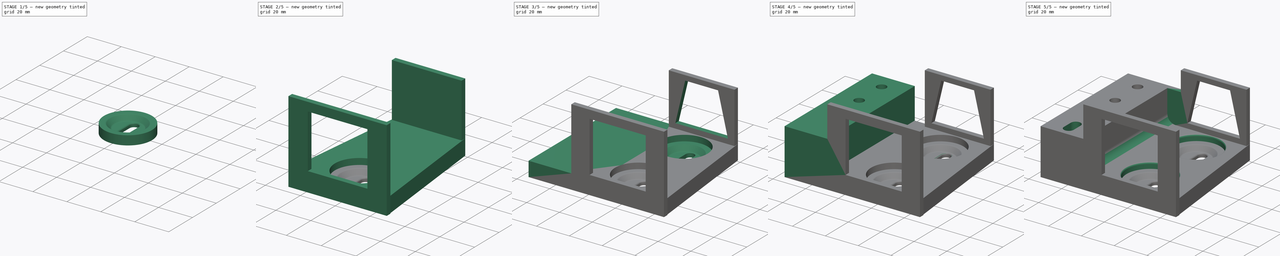
[diagram: build sequence overview — one tinted view per stage of 5, left to right]
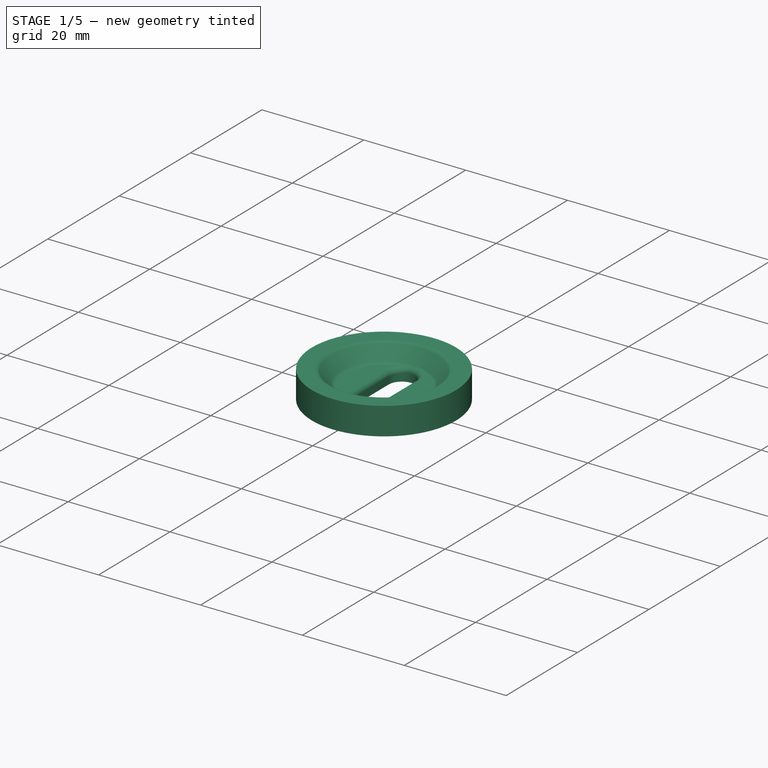
[diagram: stage 1 of 5 — iso view after this stage's code; geometry added in this stage tinted green]
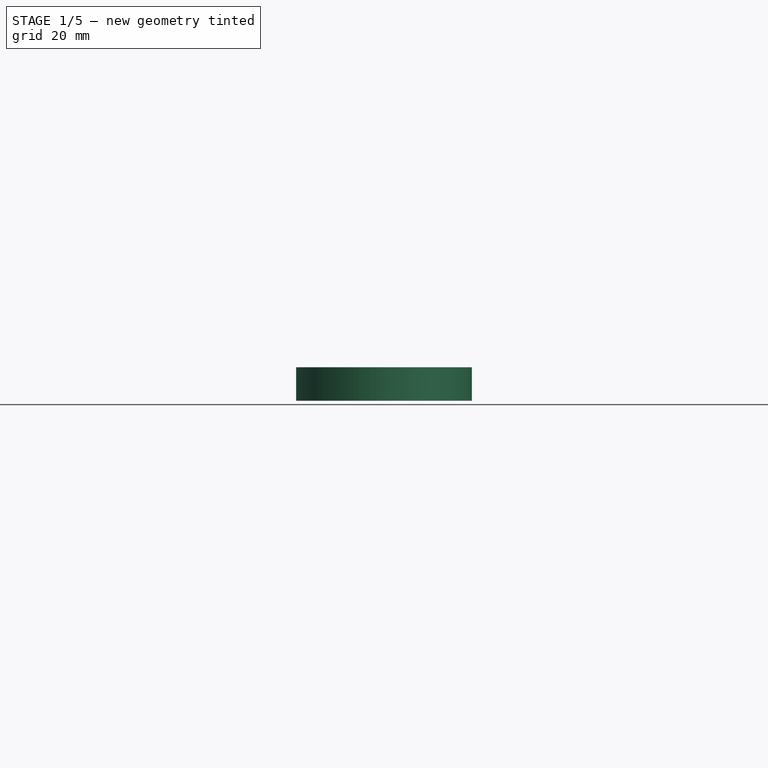
[diagram: stage 1 of 5 — front view after this stage's code; geometry added in this stage tinted green]
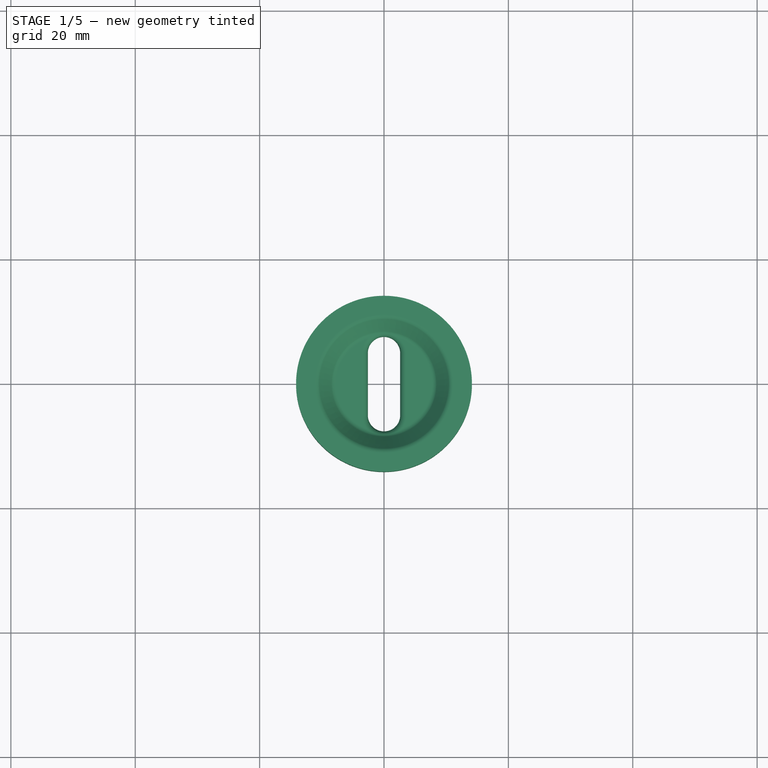
[diagram: stage 1 of 5 — top view after this stage's code; geometry added in this stage tinted green]
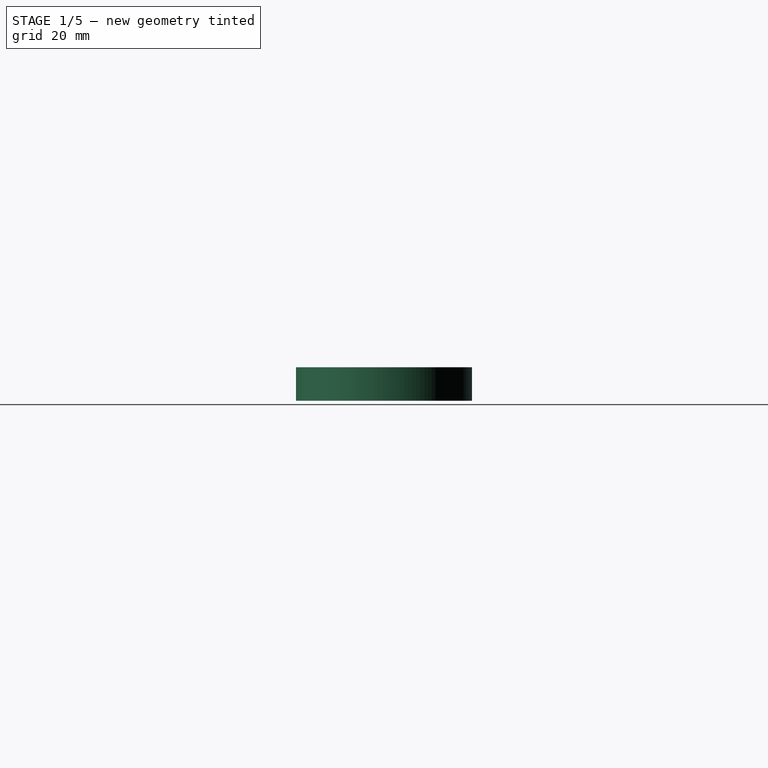
[diagram: stage 1 of 5 — right view after this stage's code; geometry added in this stage tinted green]
FCSTD DOCUMENT  (FreeCAD 1.0R39285 (Git))
Label: 01_Phillips_Mount_v2
License: All rights reserved
LicenseURL: https://en.wikipedia.org/wiki/All_rights_reserved
objects: Sketcher::SketchObject×15, PartDesign::Fillet×8, PartDesign::Pocket×7, PartDesign::Pad×6, PartDesign::Revolution×1, PartDesign::Plane×1, PartDesign::Groove×1, PartDesign::Body×1
note: 101 computed .brp shape members not serialized (recipe doc carries the construction recipe); baked Part::Feature solids carry a one-line shape summary decoded from their .brp

FEATURE [Sketcher::SketchObject] Sketch
  ArcFitTolerance = 1e-06
  AttachmentSupport = -> [YZ_Plane]
  FullyConstrained = true
  MakeInternals = false
  MapMode = 5
  Placement = pos=(0,0,0) rot=(0.57735,0.57735,0.57735;2.0944rad)
  sketch-geometry (6):
    g0: LineSegment StartX=1.2429e-11 StartY=0 StartZ=0 EndX=14.142 EndY=0 EndZ=0
    g1: LineSegment StartX=14.142 StartY=0 StartZ=0 EndX=14.142 EndY=5.4 EndZ=0
    g2: LineSegment StartX=14.142 StartY=5.4 StartZ=0 EndX=10.683 EndY=5.4 EndZ=0
    g3: LineSegment StartX=1.2429e-11 StartY=0 StartZ=0 EndX=1.2429e-11 EndY=2.4 EndZ=0
    g4: LineSegment StartX=1.2429e-11 StartY=2.4 StartZ=0 EndX=8.1657 EndY=2.4 EndZ=0
    g5: LineSegment StartX=10.683 StartY=5.4 StartZ=0 EndX=8.1657 EndY=2.4 EndZ=0
  constraints (17):
    c: Distance(g0) = 14.142
    c: Horizontal(g0)
    c: Distance(g1) = 5.4
    c: Vertical(g1)
    c: Coincident(g1,g0)
    c: Distance(g2) = 3.459
    c: Horizontal(g2)
    c: Coincident(g2,g1)
    c: Distance(g3) = 2.4
    c: Vertical(g3)
    c: Coincident(g3,g0)
    c: Coincident(g4,g3)
    c: Horizontal(g4)
    c: Coincident(g5,g2)
    c: Angle(g5,g4) = 2.26893
    c: Coincident(g5,g4)
    c: Coincident(g0,g-1)
FEATURE [PartDesign::Revolution] Revolution
  Angle = 360
  Angle2 = 60
  Axis = (0,0,1)
  Base = (0,0,0)
  Placement = pos=(0,0,0) rot=(1,1,1;2.0944rad)
  Profile = -> Sketch
  ReferenceAxis = -> Sketch [V_Axis]
  Refine = true
  Reversed = true
  Suppressed = false
  Type = 0
FEATURE [Sketcher::SketchObject] Sketch001
  ArcFitTolerance = 1e-06
  AttachmentSupport = -> [Revolution]
  ExternalGeometry = -> [Revolution]
  FullyConstrained = true
  MakeInternals = false
  MapMode = 5
  Placement = pos=(-5e-16,0,2.4) rot=(0,0,-1;1.5708rad)
  sketch-geometry (6):
    g0: LineSegment StartX=-5 StartY=2.6 StartZ=0 EndX=5 EndY=2.6 EndZ=0
    g1: LineSegment StartX=-5 StartY=-2.6 StartZ=0 EndX=5 EndY=-2.6 EndZ=0
    g2: GeomPoint [constr] X=-5 Y=-1e-16 Z=0
    g3: GeomPoint [constr] X=5 Y=2e-16 Z=0
    g4: ArcOfCircle CenterX=-5 CenterY=-1e-16 CenterZ=0 NormalX=0 NormalY=0 NormalZ=1 AngleXU=0 Radius=2.6 StartAngle=1.5708 EndAngle=4.71239
    g5: ArcOfCircle CenterX=5 CenterY=2e-16 CenterZ=0 NormalX=0 NormalY=0 NormalZ=1 AngleXU=0 Radius=2.6 StartAngle=4.71239 EndAngle=7.85398
  constraints (16):
    c: Distance(g0) = 10
    c: Horizontal(g0)
    c: Distance(g1) = 10
    c: Horizontal(g1)
    c: Vertical(g1,g0)
    c: DistanceY(g1,g0) = 5.2
    c: DistanceY(g-1,g0) = 2.6
    c: Vertical(g2,g0)
    c: Vertical(g3,g0)
    c: DistanceX(g2,g-1) = 5
    c: Coincident(g4,g1)
    c: Coincident(g4,g0)
    c: Coincident(g4,g2)
    c: Coincident(g5,g1)
    c: Coincident(g5,g0)
    c: Coincident(g5,g3)
FEATURE [PartDesign::Pocket] Pocket
  BaseFeature = -> Revolution
  Direction = (0,0,-1)
  Length = 5
  Length2 = 5
  Placement = pos=(0,0,0) rot=(1,1,1;2.0944rad)
  Profile = -> Sketch001
  ReferenceAxis = -> Sketch001 [N_Axis]
  Refine = true
  Suppressed = false
  Type = 0
FEATURE [PartDesign::Fillet] Fillet
  Base = -> Pocket [Edge17]
  BaseFeature = -> Pocket
  Placement = pos=(0,0,0) rot=(1,1,1;2.0944rad)
  Radius = 1
  Refine = true
  SupportTransform = false
  Suppressed = false
  UseAllEdges = false
FEATURE [PartDesign::Fillet] Fillet001
  Base = -> Fillet [Edge2]
  BaseFeature = -> Fillet
  Placement = pos=(0,0,0) rot=(1,1,1;2.0944rad)
  Radius = 1
  Refine = true
  SupportTransform = false
  Suppressed = false
  UseAllEdges = false
FEATURE [PartDesign::Fillet] Fillet002
  Base = -> Fillet001 [Edge21]
  BaseFeature = -> Fillet001
  Placement = pos=(0,0,0) rot=(1,1,1;2.0944rad)
  Radius = 1
  Refine = true
  SupportTransform = false
  Suppressed = false
  UseAllEdges = false
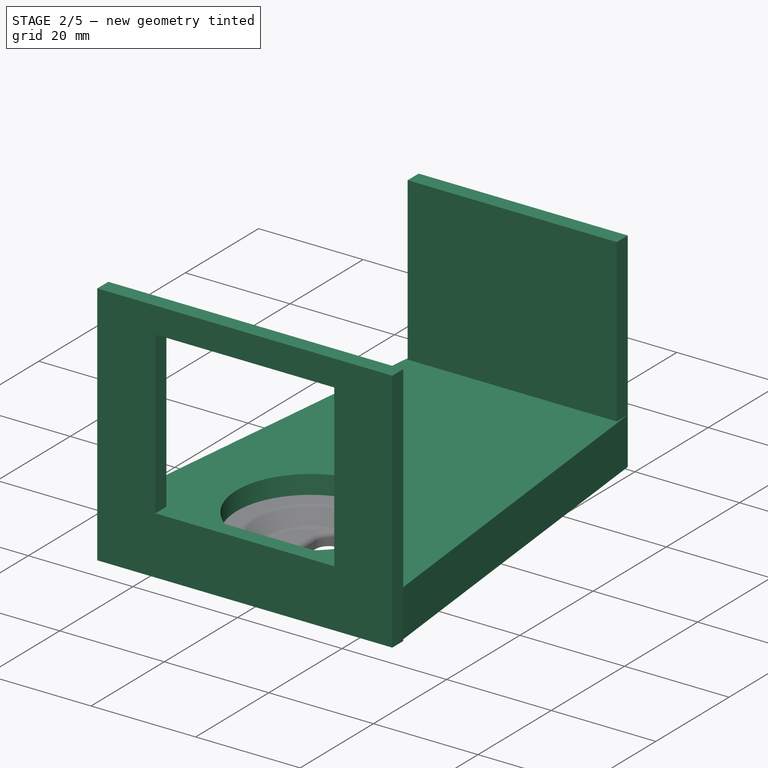
[diagram: stage 2 of 5 — iso view after this stage's code; geometry added in this stage tinted green]
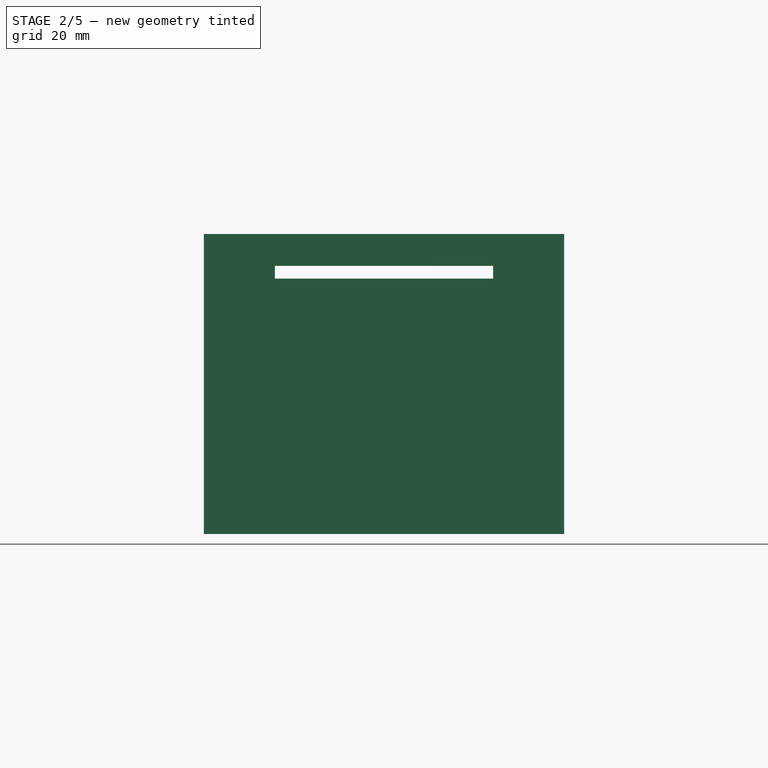
[diagram: stage 2 of 5 — front view after this stage's code; geometry added in this stage tinted green]
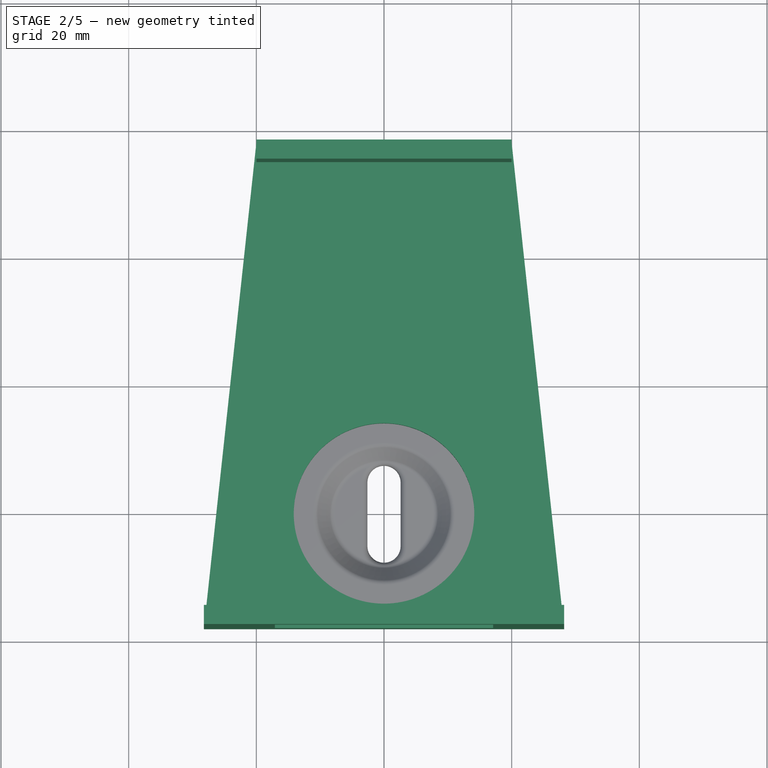
[diagram: stage 2 of 5 — top view after this stage's code; geometry added in this stage tinted green]
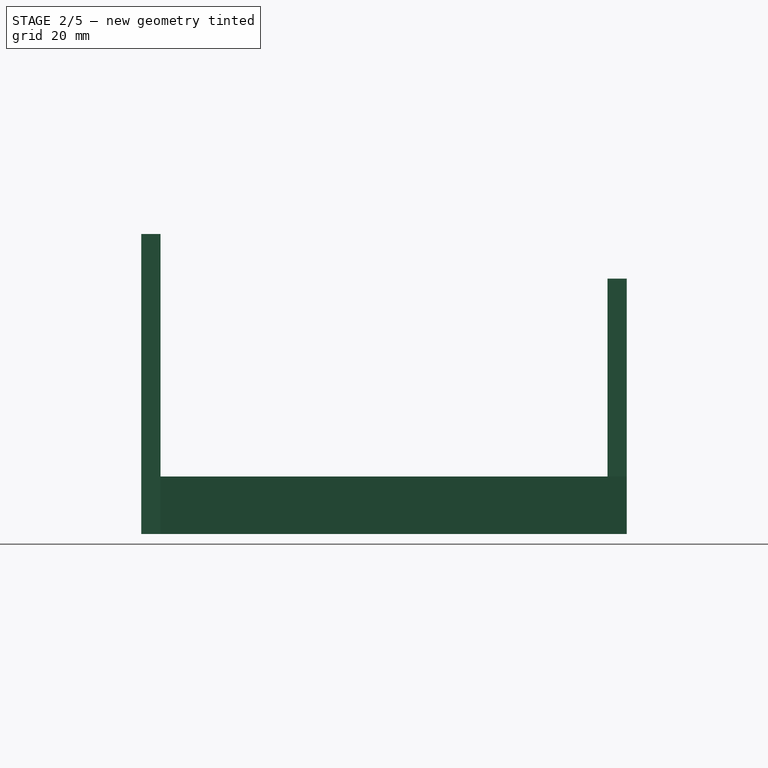
[diagram: stage 2 of 5 — right view after this stage's code; geometry added in this stage tinted green]
FEATURE [Sketcher::SketchObject] Sketch002
  ArcFitTolerance = 1e-06
  AttachmentSupport = -> [Fillet002]
  ExternalGeometry = -> [Fillet002]
  FullyConstrained = true
  MakeInternals = false
  MapMode = 5
  Placement = pos=(0,0,0) rot=(0.707107,0.707107,0;3.14159rad)
  sketch-geometry (5):
    g0: LineSegment StartX=58.0423 StartY=20 StartZ=0 EndX=58.0423 EndY=-20 EndZ=0
    g1: LineSegment StartX=-18 StartY=28.2125 StartZ=0 EndX=-18 EndY=-28.2125 EndZ=0
    g2: LineSegment StartX=58.0423 StartY=20 StartZ=0 EndX=-18 EndY=28.2125 EndZ=0
    g3: LineSegment StartX=58.0423 StartY=-20 StartZ=0 EndX=-18 EndY=-28.2125 EndZ=0
    g4: Circle CenterX=0 CenterY=0 CenterZ=0 NormalX=0 NormalY=0 NormalZ=1 AngleXU=0 Radius=14.142
  constraints (14):
    c: Distance(g0) = 40
    c: Vertical(g0)
    c: Distance(g1) = 56.425
    c: Vertical(g1)
    c: Coincident(g2,g0)
    c: Coincident(g2,g1)
    c: Coincident(g3,g0)
    c: Coincident(g3,g1)
    c: Angle(g2,g0) = 1.67838
    c: Angle(g0,g3) = 1.67838
    c: DistanceX(g1,g-1) = 18
    c: DistanceY(g-1,g0) = 20
    c: Coincident(g4,g-1)
    c: Equal(g4,g-3)
FEATURE [PartDesign::Pad] Pad
  BaseFeature = -> Fillet002
  Direction = (0,0,-1)
  Length = 9
  Length2 = 10
  Placement = pos=(0,0,0) rot=(1,1,1;2.0944rad)
  Profile = -> Sketch002
  ReferenceAxis = -> Sketch002 [N_Axis]
  Refine = true
  Reversed = true
  Suppressed = false
  Type = 0
FEATURE [Sketcher::SketchObject] Sketch003
  ArcFitTolerance = 1e-06
  AttachmentSupport = -> [Pad]
  FullyConstrained = true
  MakeInternals = false
  MapMode = 5
  Placement = pos=(2.58e-14,58.0423,-6.4e-15) rot=(0.57735,0.57735,0.57735;4.18879rad)
  sketch-geometry (4):
    g0: LineSegment StartX=0 StartY=20 StartZ=0 EndX=0 EndY=-20 EndZ=0
    g1: LineSegment StartX=0 StartY=-20 StartZ=0 EndX=40 EndY=-20 EndZ=0
    g2: LineSegment StartX=40 StartY=-20 StartZ=0 EndX=40 EndY=20 EndZ=0
    g3: LineSegment StartX=40 StartY=20 StartZ=0 EndX=0 EndY=20 EndZ=0
  constraints (12):
    c: Coincident(g0,g1)
    c: Coincident(g1,g2)
    c: Coincident(g2,g3)
    c: Coincident(g3,g0)
    c: Vertical(g0)
    c: Vertical(g2)
    c: Horizontal(g1)
    c: Horizontal(g3)
    c: Distance(g0,g2) = 40
    c: Distance(g1,g3) = 40
    c: DistanceY(g-1,g0) = 20
    c: DistanceX(g0,g-1) = 0
FEATURE [PartDesign::Pad] Pad001
  BaseFeature = -> Pad
  Direction = (0,1,0)
  Length = 3
  Length2 = 10
  Placement = pos=(0,0,0) rot=(1,1,1;2.0944rad)
  Profile = -> Sketch003
  ReferenceAxis = -> Sketch003 [N_Axis]
  Refine = true
  Reversed = true
  Suppressed = false
  Type = 0
FEATURE [Sketcher::SketchObject] Sketch004
  ArcFitTolerance = 1e-06
  AttachmentSupport = -> [Pad001]
  ExternalGeometry = -> [Pad001]
  FullyConstrained = true
  MakeInternals = false
  MapMode = 5
  Placement = pos=(-8e-15,-18,8e-15) rot=(0.57735,0.57735,-0.57735;2.0944rad)
  sketch-geometry (4):
    g0: LineSegment StartX=-47 StartY=28.2125 StartZ=0 EndX=-47 EndY=-28.2125 EndZ=0
    g1: LineSegment StartX=0 StartY=28.2125 StartZ=0 EndX=0 EndY=-28.2125 EndZ=0
    g2: LineSegment StartX=-47 StartY=28.2125 StartZ=0 EndX=0 EndY=28.2125 EndZ=0
    g3: LineSegment StartX=-47 StartY=-28.2125 StartZ=0 EndX=0 EndY=-28.2125 EndZ=0
  constraints (12):
    c: Vertical(g0)
    c: Vertical(g1)
    c: Equal(g-3,g1)
    c: Equal(g1,g0)
    c: Distance(g2) = 47
    c: Horizontal(g2)
    c: Distance(g3) = 47
    c: Horizontal(g3)
    c: Coincident(g0,g3)
    c: Coincident(g3,g1)
    c: Coincident(g2,g0)
    c: Symmetric(g1,g1,g-1)
FEATURE [PartDesign::Pad] Pad002
  BaseFeature = -> Pad001
  Direction = (0,-1,0)
  Length = 3
  Length2 = 10
  Placement = pos=(0,0,0) rot=(1,1,1;2.0944rad)
  Profile = -> Sketch004
  ReferenceAxis = -> Sketch004 [N_Axis]
  Refine = true
  Reversed = true
  Suppressed = false
  Type = 0
FEATURE [Sketcher::SketchObject] Sketch005
  ArcFitTolerance = 1e-06
  AttachmentSupport = -> [Pad002]
  ExternalGeometry = -> [Pad002]
  FullyConstrained = true
  MakeInternals = false
  MapMode = 5
  Placement = pos=(-8.8e-15,-18,2e-15) rot=(0.57735,0.57735,-0.57735;2.0944rad)
  sketch-geometry (6):
    g0: LineSegment StartX=-42 StartY=17.1 StartZ=0 EndX=-42 EndY=-17.1 EndZ=0
    g1: LineSegment StartX=-42 StartY=-17.1 StartZ=0 EndX=-11.1 EndY=-17.1 EndZ=0
    g2: LineSegment StartX=-11.1 StartY=-17.1 StartZ=0 EndX=-11.1 EndY=17.1 EndZ=0
    g3: LineSegment StartX=-11.1 StartY=17.1 StartZ=0 EndX=-42 EndY=17.1 EndZ=0
    g4: LineSegment [constr] StartX=-47 StartY=28.2125 StartZ=0 EndX=-42 EndY=17.1 EndZ=0
    g5: LineSegment [constr] StartX=-42 StartY=-17.1 StartZ=0 EndX=-47 EndY=-28.2125 EndZ=0
  constraints (16):
    c: Coincident(g0,g1)
    c: Coincident(g1,g2)
    c: Coincident(g2,g3)
    c: Coincident(g3,g0)
    c: Vertical(g0)
    c: Vertical(g2)
    c: Horizontal(g1)
    c: Horizontal(g3)
    c: Distance(g0,g2) = 30.9
    c: Distance(g1,g3) = 34.2
    c: DistanceX(g-3,g0) = 5
    c: Coincident(g4,g-3)
    c: Coincident(g4,g0)
    c: Coincident(g5,g0)
    c: Coincident(g5,g-3)
    c: Equal(g4,g5)
FEATURE [PartDesign::Pocket] Pocket001
  BaseFeature = -> Pad002
  Direction = (0,1,0)
  Length = 5
  Length2 = 5
  Placement = pos=(0,0,0) rot=(1,1,1;2.0944rad)
  Profile = -> Sketch005
  ReferenceAxis = -> Sketch005 [N_Axis]
  Refine = true
  Suppressed = false
  Type = 2
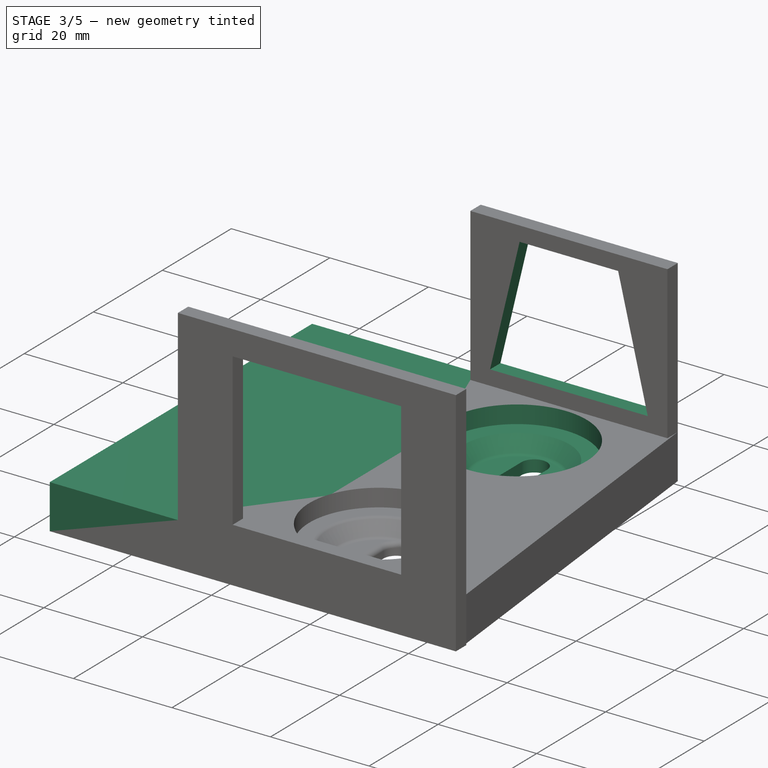
[diagram: stage 3 of 5 — iso view after this stage's code; geometry added in this stage tinted green]
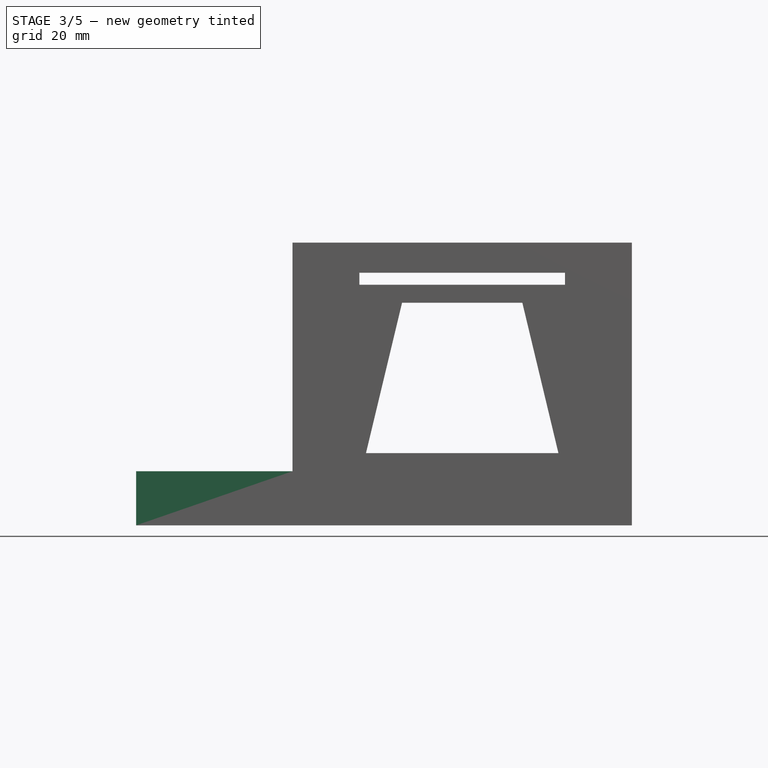
[diagram: stage 3 of 5 — front view after this stage's code; geometry added in this stage tinted green]
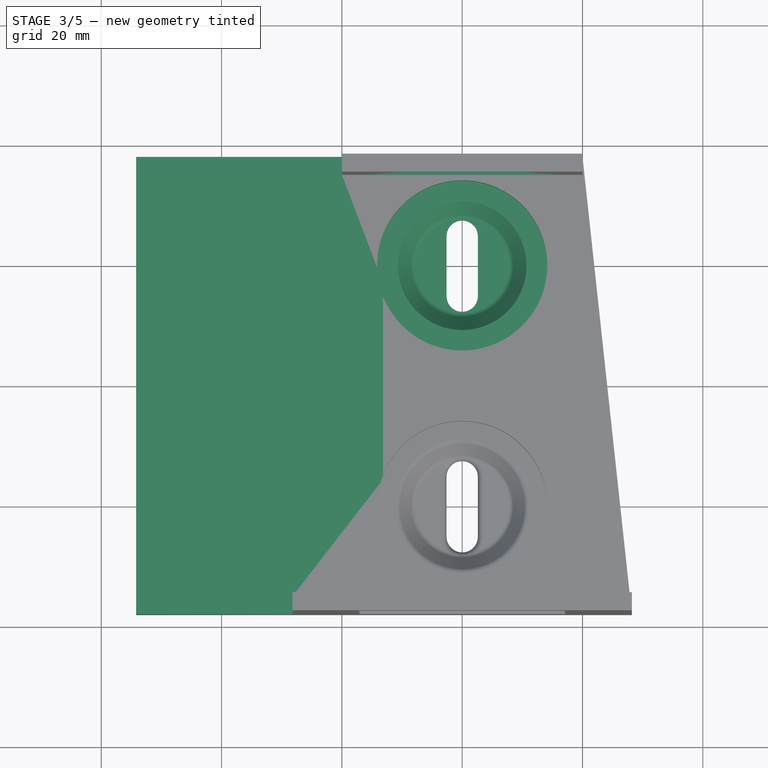
[diagram: stage 3 of 5 — top view after this stage's code; geometry added in this stage tinted green]
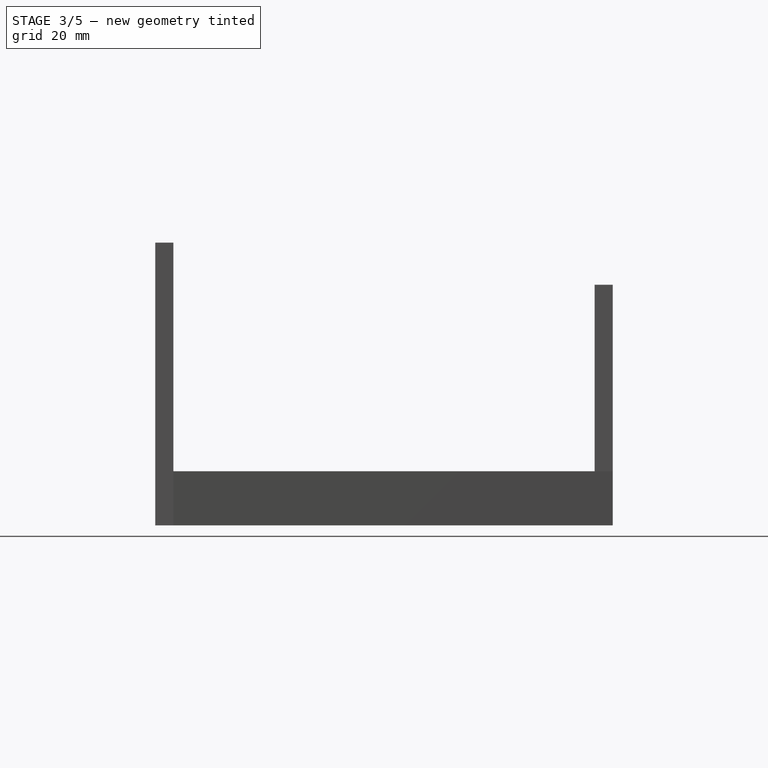
[diagram: stage 3 of 5 — right view after this stage's code; geometry added in this stage tinted green]
FEATURE [Sketcher::SketchObject] Sketch006
  ArcFitTolerance = 1e-06
  AttachmentSupport = -> [Pocket001]
  ExternalGeometry = -> [Pocket001]
  FullyConstrained = true
  MakeInternals = false
  MapMode = 5
  Placement = pos=(2.81e-14,58.0423,-4.51e-14) rot=(0.57735,0.57735,0.57735;4.18879rad)
  sketch-geometry (4):
    g0: LineSegment StartX=12 StartY=16 StartZ=0 EndX=12 EndY=-16 EndZ=0
    g1: LineSegment StartX=37 StartY=10 StartZ=0 EndX=37 EndY=-10 EndZ=0
    g2: LineSegment StartX=12 StartY=16 StartZ=0 EndX=37 EndY=10 EndZ=0
    g3: LineSegment StartX=12 StartY=-16 StartZ=0 EndX=37 EndY=-10 EndZ=0
  constraints (12):
    c: Distance(g0) = 32
    c: Vertical(g0)
    c: Distance(g1) = 20
    c: Vertical(g1)
    c: DistanceY(g-1,g0) = 16
    c: DistanceY(g-1,g1) = 10
    c: DistanceX(g-4,g0) = 12
    c: DistanceX(g1,g-3) = 3
    c: Coincident(g2,g0)
    c: Coincident(g2,g1)
    c: Coincident(g3,g0)
    c: Coincident(g3,g1)
FEATURE [PartDesign::Pocket] Pocket002
  BaseFeature = -> Pocket001
  Direction = (0,-1,0)
  Length = 5
  Length2 = 5
  Placement = pos=(0,0,0) rot=(1,1,1;2.0944rad)
  Profile = -> Sketch006
  ReferenceAxis = -> Sketch006 [N_Axis]
  Refine = true
  Suppressed = false
  Type = 2
FEATURE [Sketcher::SketchObject] Sketch007
  ArcFitTolerance = 1e-06
  AttachmentSupport = -> [Pocket002]
  ExternalGeometry = -> [Pocket002]
  FullyConstrained = true
  MakeInternals = false
  MapMode = 5
  Placement = pos=(-1.5e-14,5e-15,9) rot=(0,0,-1;1.5708rad)
  sketch-geometry (4):
    g0: LineSegment StartX=18 StartY=-28.2125 StartZ=0 EndX=-58.0423 EndY=-20 EndZ=0
    g1: LineSegment StartX=18 StartY=-28.2125 StartZ=0 EndX=18 EndY=-54.2125 EndZ=0
    g2: LineSegment StartX=-58.0423 StartY=-20 StartZ=0 EndX=-58.0423 EndY=-54.2125 EndZ=0
    g3: LineSegment StartX=-58.0423 StartY=-54.2125 StartZ=0 EndX=18 EndY=-54.2125 EndZ=0
  constraints (10):
    c: Coincident(g0,g-3)
    c: Coincident(g0,g-4)
    c: Distance(g1) = 26
    c: Coincident(g1,g0)
    c: Vertical(g1)
    c: Coincident(g2,g0)
    c: Vertical(g2)
    c: Coincident(g3,g2)
    c: Coincident(g3,g1)
    c: Horizontal(g3)
FEATURE [PartDesign::Pad] Pad003
  BaseFeature = -> Pocket002
  Direction = (-1.7e-15,0,1)
  Length = 9
  Length2 = 10
  Placement = pos=(0,0,0) rot=(1,1,1;2.0944rad)
  Profile = -> Sketch007
  ReferenceAxis = -> Sketch007 [N_Axis]
  Refine = true
  Reversed = true
  Suppressed = false
  Type = 0
FEATURE [PartDesign::Plane] DatumPlane
  AttachmentSupport = -> [Pad003]
  Length = 98.5072
  MapMode = 2
  Placement = pos=(0,0,0) rot=(0.57735,0.57735,0.57735;2.0944rad)
  ResizeMode = 0
  Width = 87.4649
FEATURE [Sketcher::SketchObject] Sketch008
  ArcFitTolerance = 1e-06
  AttachmentSupport = -> [DatumPlane]
  FullyConstrained = true
  MakeInternals = false
  MapMode = 5
  Placement = pos=(0,0,0) rot=(0.57735,0.57735,0.57735;2.0944rad)
  sketch-geometry (7):
    g0: GeomPoint [constr] X=40 Y=0 Z=0
    g1: LineSegment StartX=25.858 StartY=9 StartZ=0 EndX=40 EndY=9 EndZ=0
    g2: LineSegment StartX=40 StartY=9 StartZ=0 EndX=40 EndY=2.4 EndZ=0
    g3: LineSegment StartX=25.858 StartY=9 StartZ=0 EndX=25.858 EndY=5.4 EndZ=0
    g4: LineSegment StartX=25.858 StartY=5.4 StartZ=0 EndX=29.317 EndY=5.4 EndZ=0
    g5: LineSegment StartX=40 StartY=2.4 StartZ=0 EndX=31.8343 EndY=2.4 EndZ=0
    g6: LineSegment StartX=29.317 StartY=5.4 StartZ=0 EndX=31.8343 EndY=2.4 EndZ=0
  constraints (20):
    c: DistanceX(g-1,g0) = 40
    c: DistanceY(g-1,g0) = 0
    c: Distance(g1) = 14.142
    c: Horizontal(g1)
    c: Distance(g2) = 6.6
    c: Vertical(g2)
    c: Coincident(g2,g1)
    c: Distance(g3) = 3.6
    c: Vertical(g3)
    c: Coincident(g3,g1)
    c: Distance(g4) = 3.459
    c: Horizontal(g4)
    c: Coincident(g4,g3)
    c: Coincident(g5,g2)
    c: Horizontal(g5)
    c: Coincident(g6,g4)
    c: Angle(g5,g6) = 2.26893
    c: Coincident(g5,g6)
    c: DistanceY(g0,g1) = 9
    c: DistanceX(g0,g2) = 0
FEATURE [PartDesign::Groove] Groove
  Angle = 360
  Angle2 = 60
  Axis = (0,0,-1)
  Base = (0,40,9)
  BaseFeature = -> Pad003
  Placement = pos=(0,0,0) rot=(1,1,1;2.0944rad)
  Profile = -> Sketch008
  ReferenceAxis = -> Sketch008 [Edge2]
  Refine = true
  Suppressed = false
  Type = 0
FEATURE [Sketcher::SketchObject] Sketch009
  ArcFitTolerance = 1e-06
  AttachmentSupport = -> [Groove]
  ExternalGeometry = -> [Groove]
  FullyConstrained = true
  MakeInternals = false
  MapMode = 5
  Placement = pos=(-8e-16,3e-16,2.4) rot=(0,0,-1;1.5708rad)
  sketch-geometry (6):
    g0: LineSegment StartX=-45 StartY=2.6 StartZ=0 EndX=-35 EndY=2.6 EndZ=0
    g1: LineSegment StartX=-45 StartY=-2.6 StartZ=0 EndX=-35 EndY=-2.6 EndZ=0
    g2: GeomPoint [constr] X=-45 Y=9e-15 Z=0
    g3: GeomPoint [constr] X=-35 Y=2.3949e-12 Z=0
    g4: ArcOfCircle CenterX=-45 CenterY=9e-15 CenterZ=0 NormalX=0 NormalY=0 NormalZ=1 AngleXU=0 Radius=2.6 StartAngle=1.5708 EndAngle=4.71239
    g5: ArcOfCircle CenterX=-35 CenterY=2.3949e-12 CenterZ=0 NormalX=0 NormalY=0 NormalZ=1 AngleXU=0 Radius=2.6 StartAngle=4.71239 EndAngle=7.85398
  constraints (16):
    c: Distance(g0) = 10
    c: Horizontal(g0)
    c: Distance(g1) = 10
    c: Horizontal(g1)
    c: Vertical(g1,g0)
    c: DistanceY(g1,g0) = 5.2
    c: DistanceY(g-3,g0) = 2.6
    c: DistanceX(g0,g-3) = 5
    c: Vertical(g2,g0)
    c: Vertical(g3,g0)
    c: Coincident(g4,g1)
    c: Coincident(g4,g0)
    c: Coincident(g4,g2)
    c: Coincident(g5,g0)
    c: Coincident(g5,g1)
    c: Coincident(g5,g3)
FEATURE [PartDesign::Pocket] Pocket003
  BaseFeature = -> Groove
  Direction = (0,0,-1)
  Length = 5
  Length2 = 5
  Placement = pos=(0,0,0) rot=(1,1,1;2.0944rad)
  Profile = -> Sketch009
  ReferenceAxis = -> Sketch009 [N_Axis]
  Refine = true
  Suppressed = false
  Type = 0
FEATURE [PartDesign::Fillet] Fillet003
  Base = -> Pocket003 [Edge113]
  BaseFeature = -> Pocket003
  Placement = pos=(0,0,0) rot=(1,1,1;2.0944rad)
  Radius = 1
  Refine = true
  SupportTransform = false
  Suppressed = false
  UseAllEdges = false
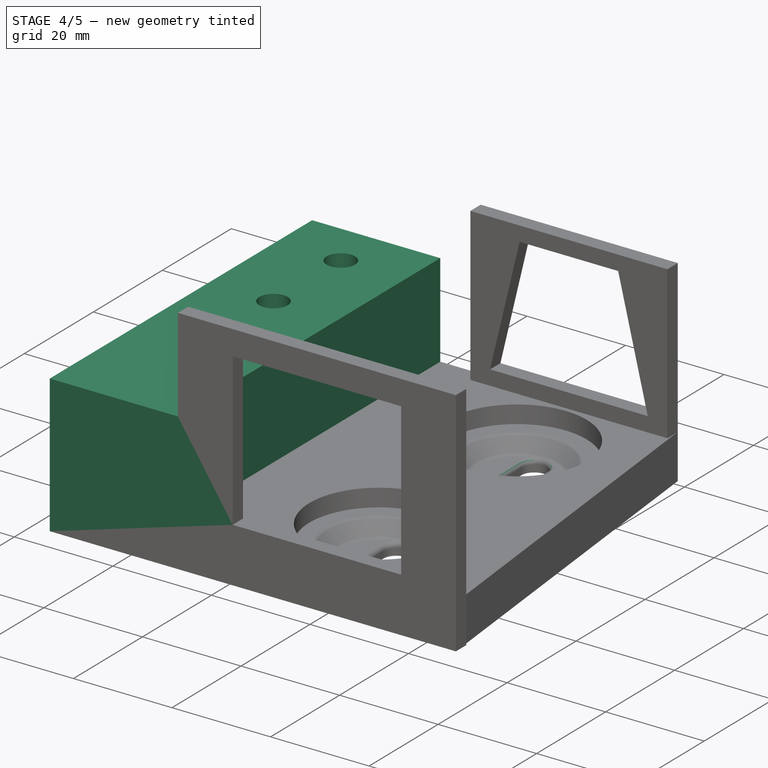
[diagram: stage 4 of 5 — iso view after this stage's code; geometry added in this stage tinted green]
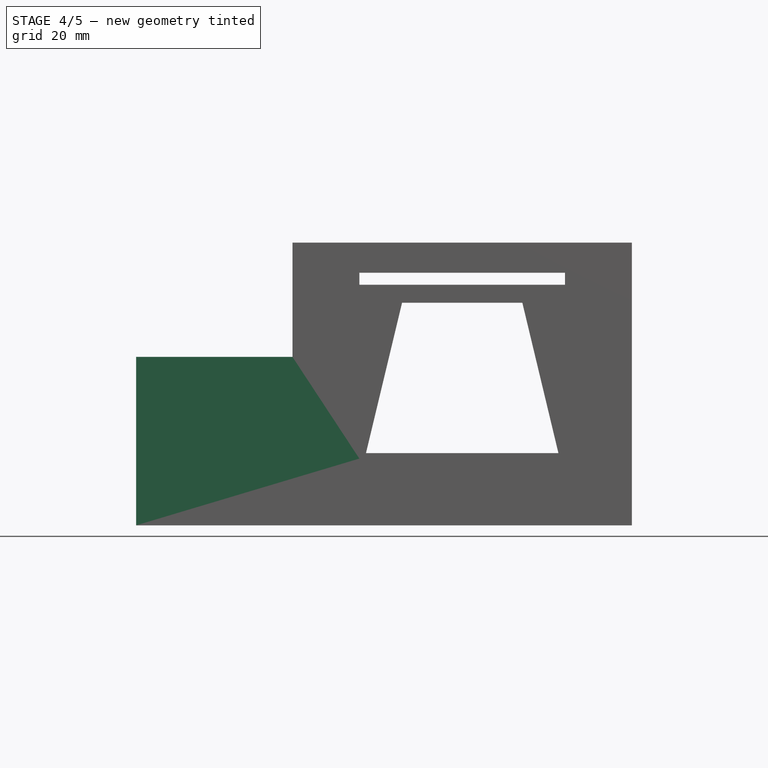
[diagram: stage 4 of 5 — front view after this stage's code; geometry added in this stage tinted green]
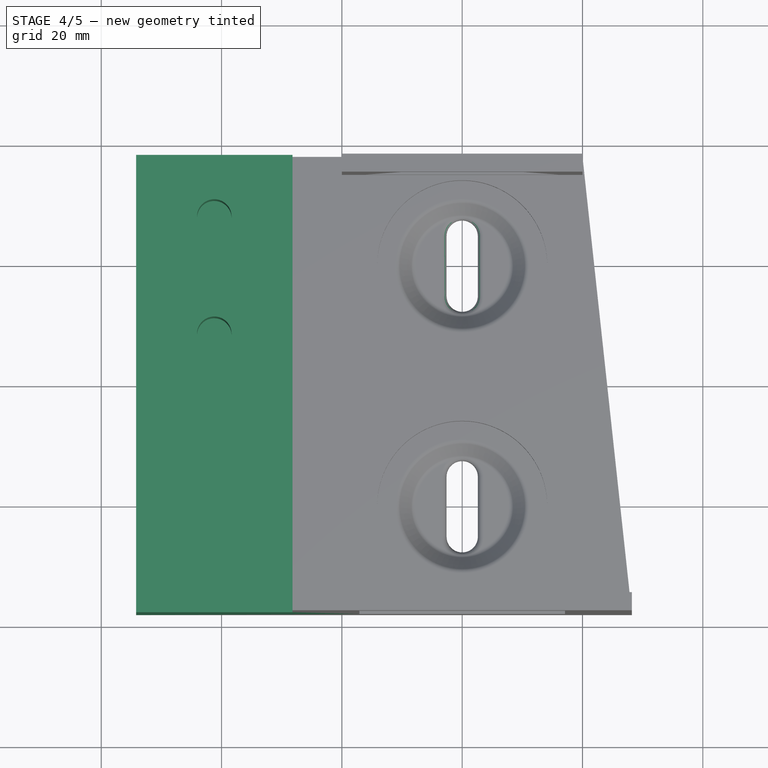
[diagram: stage 4 of 5 — top view after this stage's code; geometry added in this stage tinted green]
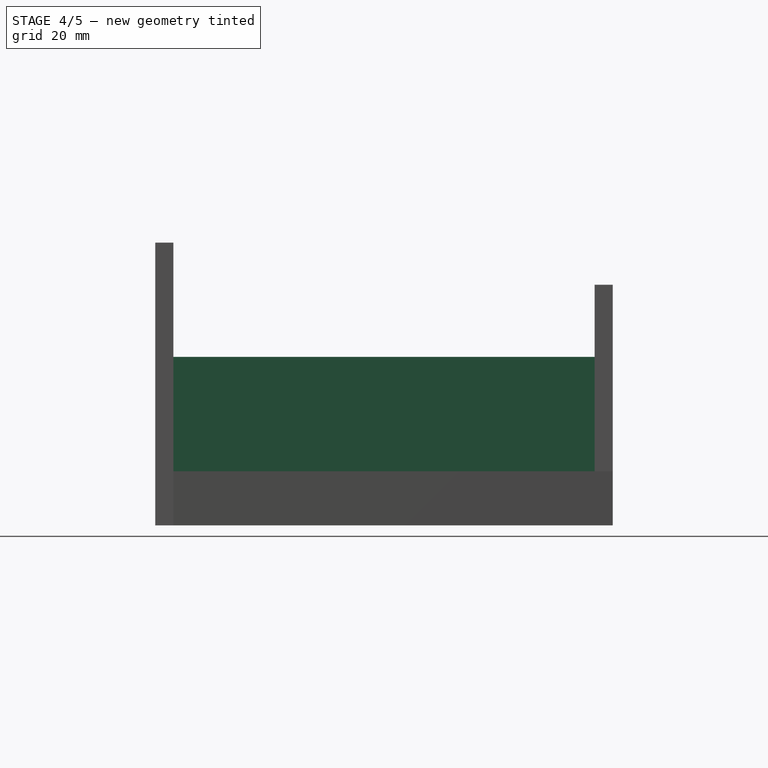
[diagram: stage 4 of 5 — right view after this stage's code; geometry added in this stage tinted green]
FEATURE [PartDesign::Fillet] Fillet004
  Base = -> Fillet003 [Edge5]
  BaseFeature = -> Fillet003
  Placement = pos=(0,0,0) rot=(1,1,1;2.0944rad)
  Radius = 1
  Refine = true
  SupportTransform = false
  Suppressed = false
  UseAllEdges = false
FEATURE [PartDesign::Fillet] Fillet005
  Base = -> Fillet004 [Edge21]
  BaseFeature = -> Fillet004
  Placement = pos=(0,0,0) rot=(1,1,1;2.0944rad)
  Radius = 1
  Refine = true
  SupportTransform = false
  Suppressed = false
  UseAllEdges = false
FEATURE [Sketcher::SketchObject] Sketch010
  ArcFitTolerance = 1e-06
  AttachmentSupport = -> [Fillet005]
  ExternalGeometry = -> [Fillet005]
  FullyConstrained = true
  MakeInternals = false
  MapMode = 5
  Placement = pos=(-1.77e-14,1.12e-14,9) rot=(0,0,-1;1.5708rad)
  sketch-geometry (4):
    g0: LineSegment StartX=-58.0423 StartY=-54.2125 StartZ=0 EndX=18 EndY=-54.2125 EndZ=0
    g1: LineSegment StartX=-58.0423 StartY=-54.2125 StartZ=0 EndX=-58.0423 EndY=-28.2125 EndZ=0
    g2: LineSegment StartX=18 StartY=-54.2125 StartZ=0 EndX=18 EndY=-28.2125 EndZ=0
    g3: LineSegment StartX=-58.0423 StartY=-28.2125 StartZ=0 EndX=18 EndY=-28.2125 EndZ=0
  constraints (11):
    c: Horizontal(g0)
    c: Equal(g0,g-3)
    c: Coincident(g0,g-3)
    c: Distance(g1) = 26
    c: Coincident(g1,g0)
    c: Vertical(g1)
    c: Distance(g2) = 26
    c: Coincident(g2,g0)
    c: Vertical(g2)
    c: Coincident(g3,g1)
    c: Coincident(g3,g2)
FEATURE [PartDesign::Pad] Pad004
  BaseFeature = -> Fillet005
  Direction = (-2e-15,1.2e-15,1)
  Length = 19
  Length2 = 10
  Placement = pos=(0,0,0) rot=(1,1,1;2.0944rad)
  Profile = -> Sketch010
  ReferenceAxis = -> Sketch010 [N_Axis]
  Refine = true
  Suppressed = false
  Type = 0
FEATURE [Sketcher::SketchObject] Sketch011
  ArcFitTolerance = 1e-06
  AttachmentSupport = -> [Pad004]
  ExternalGeometry = -> [Pad004]
  FullyConstrained = true
  MakeInternals = false
  MapMode = 5
  Placement = pos=(-6.48e-14,3.78e-14,28) rot=(0,0,-1;1.5708rad)
  sketch-geometry (3):
    g0: GeomPoint [constr] X=-38.0423 Y=-41.2125 Z=0
    g1: Circle CenterX=-47.7923 CenterY=-41.2125 CenterZ=0 NormalX=0 NormalY=0 NormalZ=1 AngleXU=0 Radius=2.875
    g2: Circle CenterX=-28.2923 CenterY=-41.2125 CenterZ=0 NormalX=0 NormalY=0 NormalZ=1 AngleXU=0 Radius=2.875
  constraints (7):
    c: DistanceX(g-3,g0) = 20
    c: DistanceY(g-4,g0) = 13
    c: Equal(g1,g2)
    c: Diameter(g1) = 5.75
    c: DistanceX(g1,g2) = 19.5
    c: Horizontal(g1,g0)
    c: Symmetric(g1,g2,g0)
FEATURE [PartDesign::Pocket] Pocket004
  BaseFeature = -> Pad004
  Direction = (2.3e-15,-1.3e-15,-1)
  Length = 17
  Length2 = 5
  Placement = pos=(0,0,0) rot=(1,1,1;2.0944rad)
  Profile = -> Sketch011
  ReferenceAxis = -> Sketch011 [N_Axis]
  Refine = true
  Suppressed = false
  Type = 0
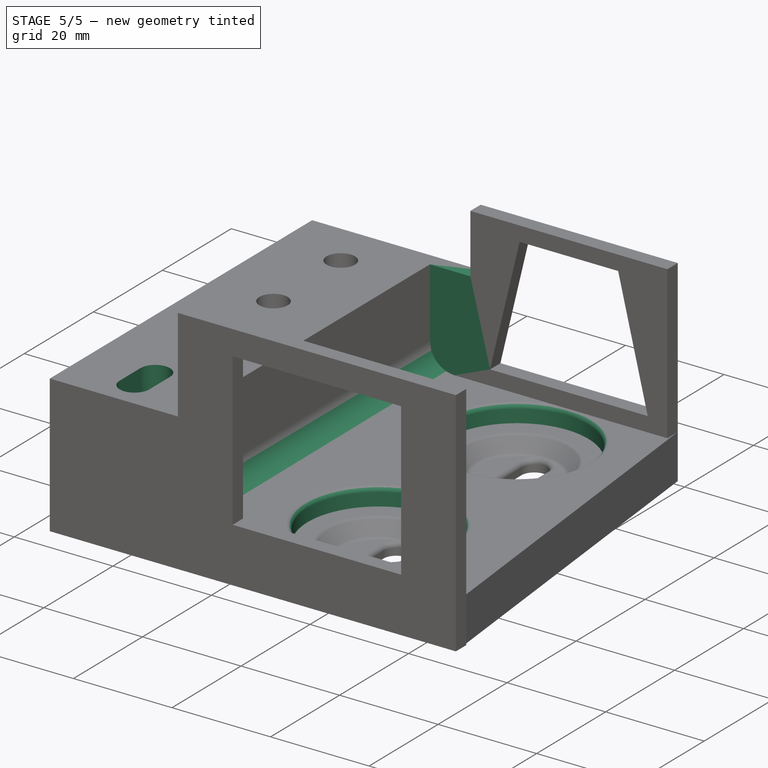
[diagram: stage 5 of 5 — iso view after this stage's code; geometry added in this stage tinted green]
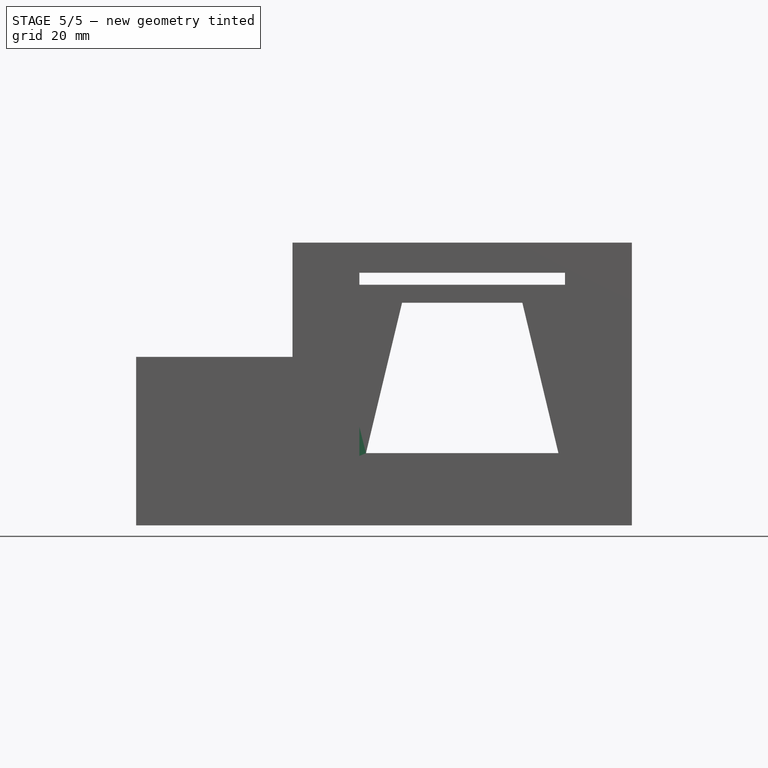
[diagram: stage 5 of 5 — front view after this stage's code; geometry added in this stage tinted green]
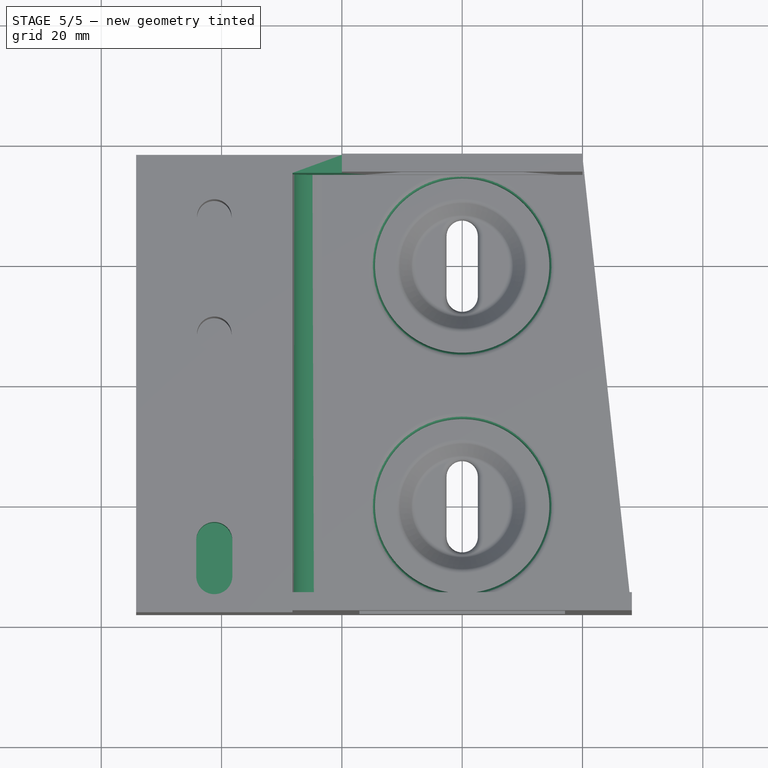
[diagram: stage 5 of 5 — top view after this stage's code; geometry added in this stage tinted green]
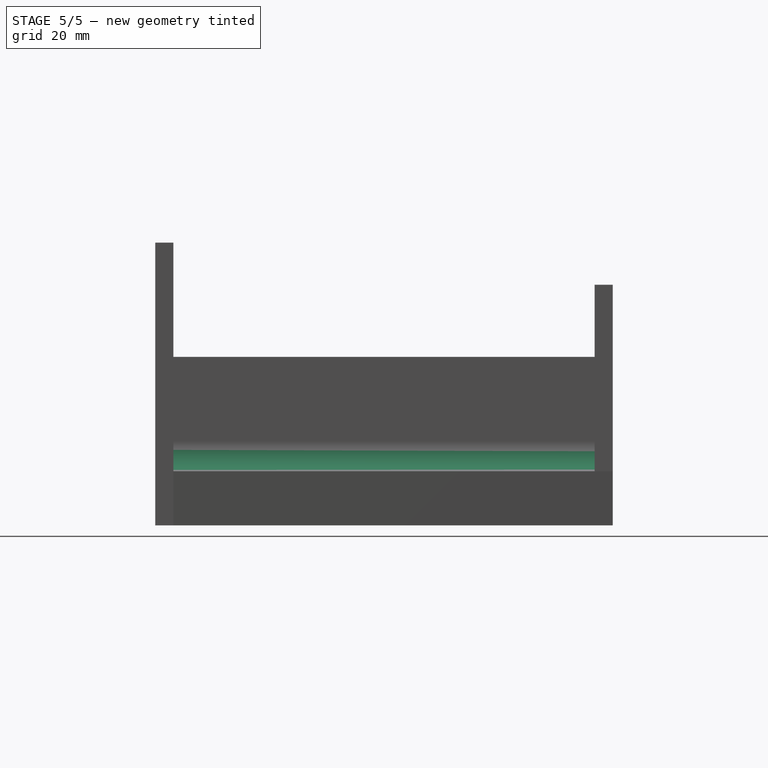
[diagram: stage 5 of 5 — right view after this stage's code; geometry added in this stage tinted green]
FEATURE [Sketcher::SketchObject] Sketch012
  ArcFitTolerance = 1e-06
  AttachmentSupport = -> [Pocket004]
  ExternalGeometry = -> [Pocket004]
  FullyConstrained = true
  MakeInternals = false
  MapMode = 5
  Placement = pos=(-7.41e-14,4.09e-14,28) rot=(0,0,-1;1.5708rad)
  sketch-geometry (5):
    g0: GeomPoint [constr] X=-38.0423 Y=-41.2125 Z=0
    g1: ArcOfCircle CenterX=6 CenterY=-41.2125 CenterZ=0 NormalX=0 NormalY=0 NormalZ=1 AngleXU=0 Radius=3 StartAngle=1.5708 EndAngle=4.71239
    g2: ArcOfCircle CenterX=12 CenterY=-41.2125 CenterZ=0 NormalX=0 NormalY=0 NormalZ=1 AngleXU=0 Radius=3 StartAngle=4.71239 EndAngle=7.85398
    g3: LineSegment StartX=6 StartY=-38.2125 StartZ=0 EndX=12 EndY=-38.2125 EndZ=0
    g4: LineSegment StartX=6 StartY=-44.2125 StartZ=0 EndX=12 EndY=-44.2125 EndZ=0
  constraints (11):
    c: Symmetric(g-4,g-3,g0)
    c: Tangent(g1,g3) = 1.5708
    c: Tangent(g1,g4) = -1.5708
    c: Tangent(g2,g3) = 1.5708
    c: Tangent(g2,g4) = -1.5708
    c: Equal(g1,g2)
    c: Horizontal(g4)
    c: Distance(g1,g2) = 6
    c: Radius(g1) = 3
    c: Horizontal(g0,g2)
    c: DistanceX(g2,g-5) = 6
FEATURE [PartDesign::Pocket] Pocket005
  BaseFeature = -> Pocket004
  Direction = (2.6e-15,-1.5e-15,-1)
  Length = 8
  Length2 = 5
  Placement = pos=(0,0,0) rot=(1,1,1;2.0944rad)
  Profile = -> Sketch012
  ReferenceAxis = -> Sketch012 [N_Axis]
  Refine = true
  Suppressed = false
  Type = 0
FEATURE [Sketcher::SketchObject] Sketch013
  ArcFitTolerance = 1e-06
  AttachmentSupport = -> [Pocket004]
  ExternalGeometry = -> [Pocket004]
  FullyConstrained = true
  MakeInternals = false
  MapMode = 5
  Placement = pos=(-28.2125,0,-6.81e-14) rot=(0.57735,0.57735,0.57735;2.0944rad)
  sketch-geometry (4):
    g0: LineSegment StartX=55.0423 StartY=28 StartZ=0 EndX=55.0423 EndY=9 EndZ=0
    g1: LineSegment StartX=55.0423 StartY=28 StartZ=0 EndX=58.0423 EndY=28 EndZ=0
    g2: LineSegment StartX=58.0423 StartY=28 StartZ=0 EndX=58.0423 EndY=9 EndZ=0
    g3: LineSegment StartX=55.0423 StartY=9 StartZ=0 EndX=58.0423 EndY=9 EndZ=0
  constraints (11):
    c: Vertical(g0)
    c: Distance(g1) = 3
    c: Horizontal(g1)
    c: Vertical(g2)
    c: Equal(g-5,g0)
    c: Equal(g0,g2)
    c: Coincident(g1,g0)
    c: Coincident(g1,g2)
    c: Coincident(g3,g0)
    c: Coincident(g3,g2)
    c: Coincident(g1,g-5)
FEATURE [PartDesign::Pad] Pad005
  BaseFeature = -> Pocket005
  Direction = (1,1e-16,2.3e-15)
  Length = 10
  Length2 = 10
  Placement = pos=(0,0,0) rot=(1,1,1;2.0944rad)
  Profile = -> Sketch013
  ReferenceAxis = -> Sketch013 [N_Axis]
  Refine = true
  Suppressed = false
  Type = 0
FEATURE [Sketcher::SketchObject] Sketch014
  ArcFitTolerance = 1e-06
  AttachmentSupport = -> [Pad005]
  ExternalGeometry = -> [Pad005]
  FullyConstrained = true
  MakeInternals = false
  MapMode = 5
  Placement = pos=(-2.97e-14,1.52e-14,9) rot=(0,0,-1;1.5708rad)
  sketch-geometry (2):
    g0: Circle CenterX=-40 CenterY=1.78e-14 CenterZ=0 NormalX=0 NormalY=0 NormalZ=1 AngleXU=0 Radius=14.5
    g1: Circle CenterX=0 CenterY=0 CenterZ=0 NormalX=0 NormalY=0 NormalZ=1 AngleXU=0 Radius=14.5
  constraints (4):
    c: Diameter(g0) = 29
    c: Coincident(g-4,g0)
    c: Diameter(g1) = 29
    c: Coincident(g-1,g1)
FEATURE [PartDesign::Pocket] Pocket006
  BaseFeature = -> Pad005
  Direction = (3.3e-15,-1.7e-15,-1)
  Length = 0
  Length2 = 5
  Placement = pos=(0,0,0) rot=(1,1,1;2.0944rad)
  Profile = -> Sketch014
  ReferenceAxis = -> Sketch014 [N_Axis]
  Refine = true
  Suppressed = false
  Type = 3
  UpToFace = -> Pad005 [Face43]
FEATURE [PartDesign::Fillet] Fillet006
  Base = -> Pocket006 [Edge9,Edge3]
  BaseFeature = -> Pocket006
  Placement = pos=(0,0,0) rot=(1,1,1;2.0944rad)
  Radius = 1
  Refine = true
  SupportTransform = false
  Suppressed = false
  UseAllEdges = false
FEATURE [PartDesign::Fillet] Fillet007
  Base = -> Fillet006 [Edge18]
  BaseFeature = -> Fillet006
  Placement = pos=(0,0,0) rot=(1,1,1;2.0944rad)
  Radius = 5
  Refine = true
  SupportTransform = false
  Suppressed = false
  UseAllEdges = false
FEATURE [PartDesign::Body] Body
  AllowCompound = false
  Group = -> [Sketch,Revolution,Sketch001,Pocket,Fillet,Fillet001,Fillet002,Sketch002,Pad,Sketch003,Pad001,Sketch004,Pad002,Sketch005,Pocket001,Sketch006,Pocket002,Sketch007,Pad003,DatumPlane,Sketch008,Groove,Sketch009,Pocket003,Fillet003,Fillet004,Fillet005,Sketch010,Pad004,Sketch011,Pocket004,Sketch012,Pocket005,Sketch013,Pad005,Sketch014,Pocket006,Fillet006,Fillet007]
  Origin = -> Origin
  Tip = -> Fillet007
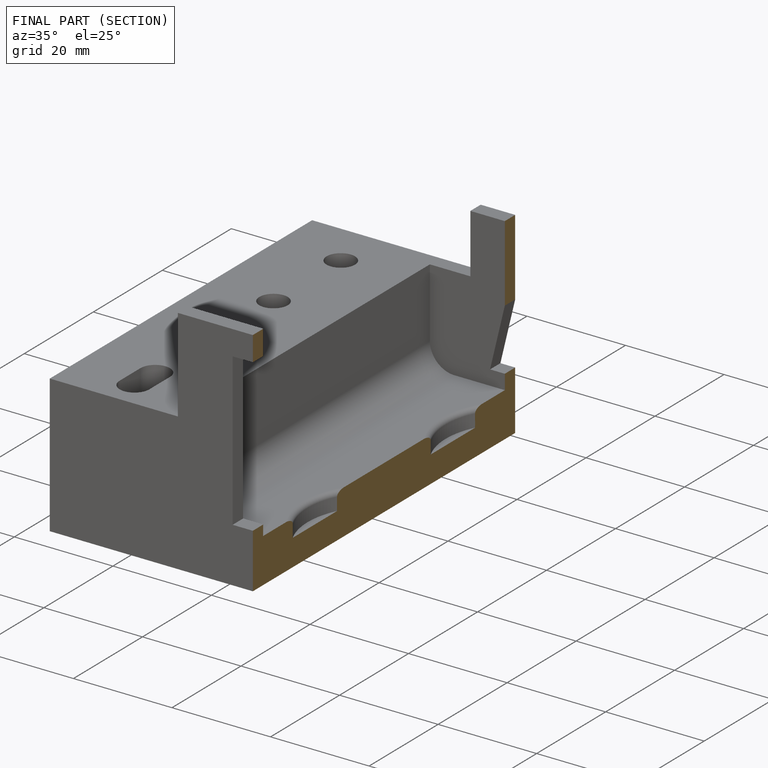
[diagram: finished part — half-section view (interior)]
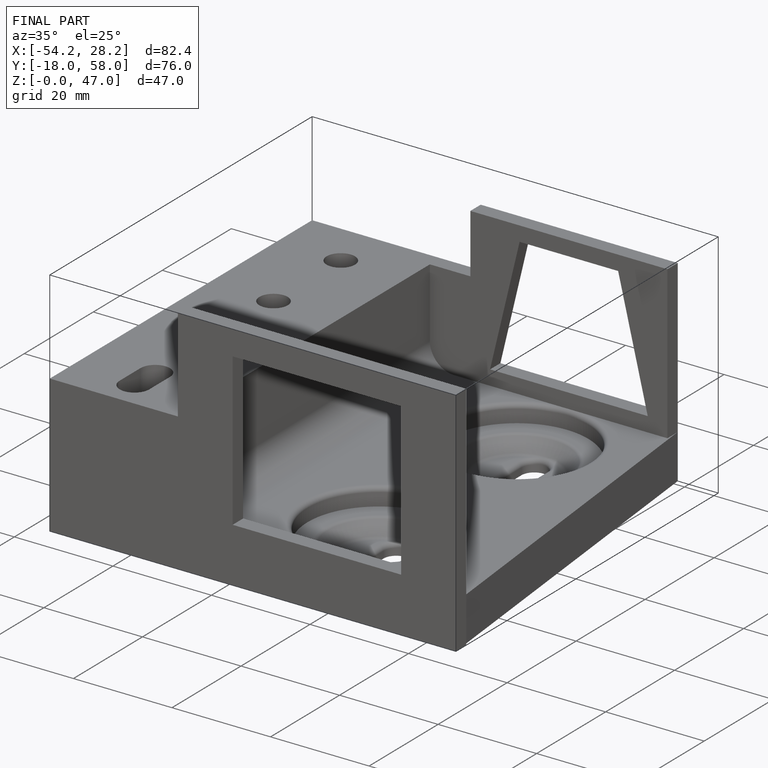
[diagram: finished part — iso view with bounding-box wireframe]
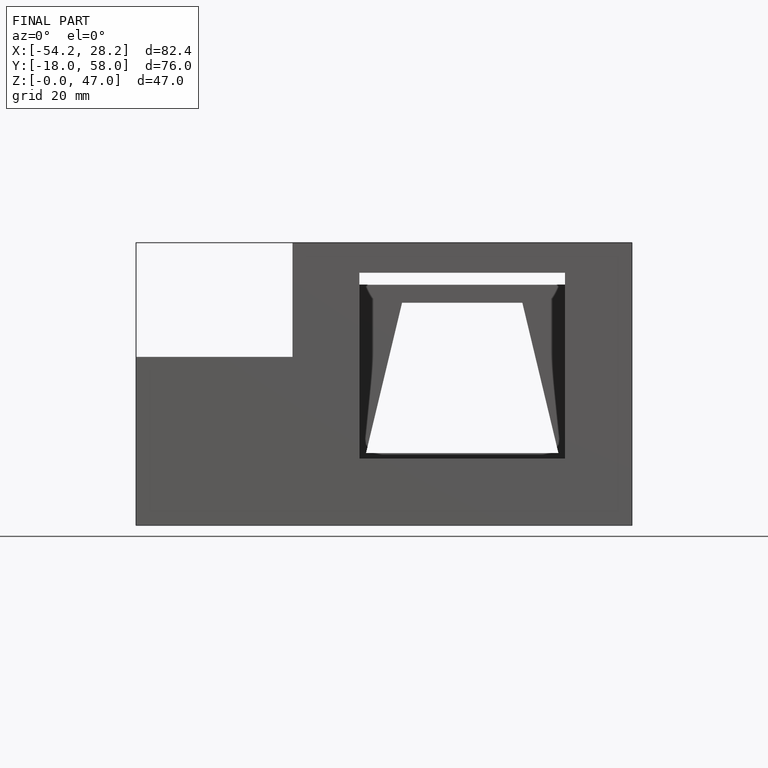
[diagram: finished part — front view with bounding-box wireframe]
